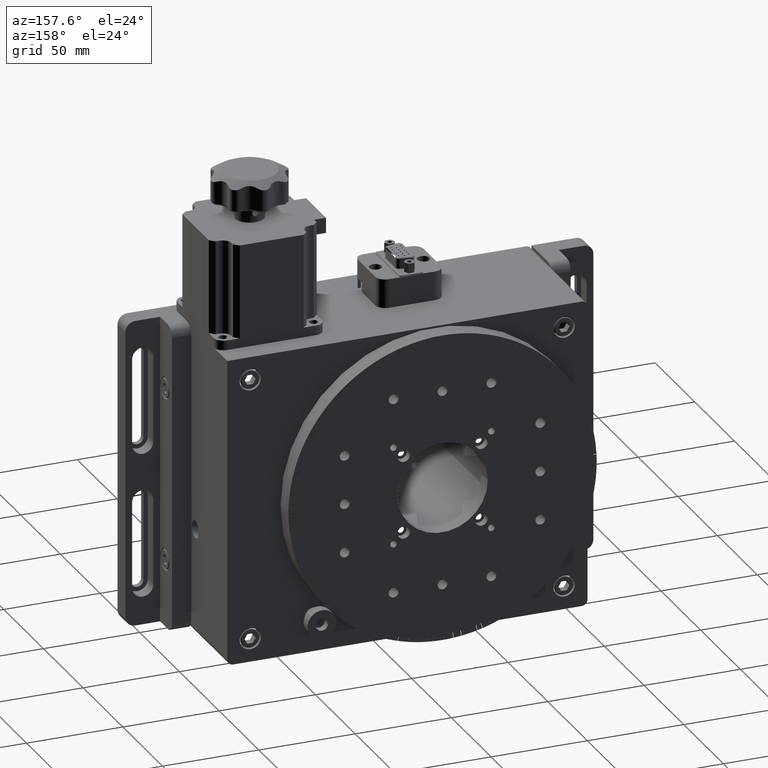
[diagram: clean part render]
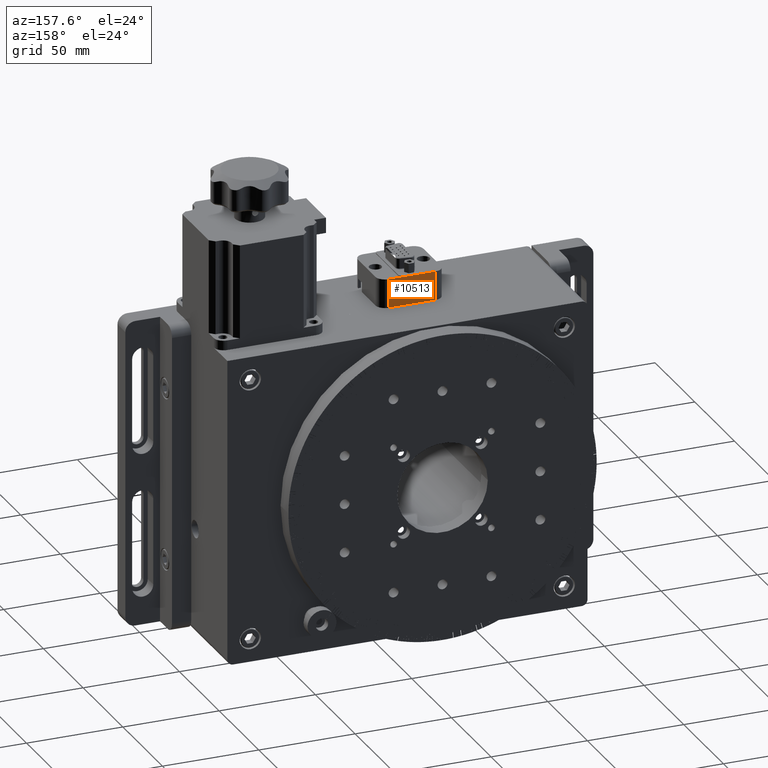
[diagram: same view with one face highlighted and labeled with its STEP entity id]
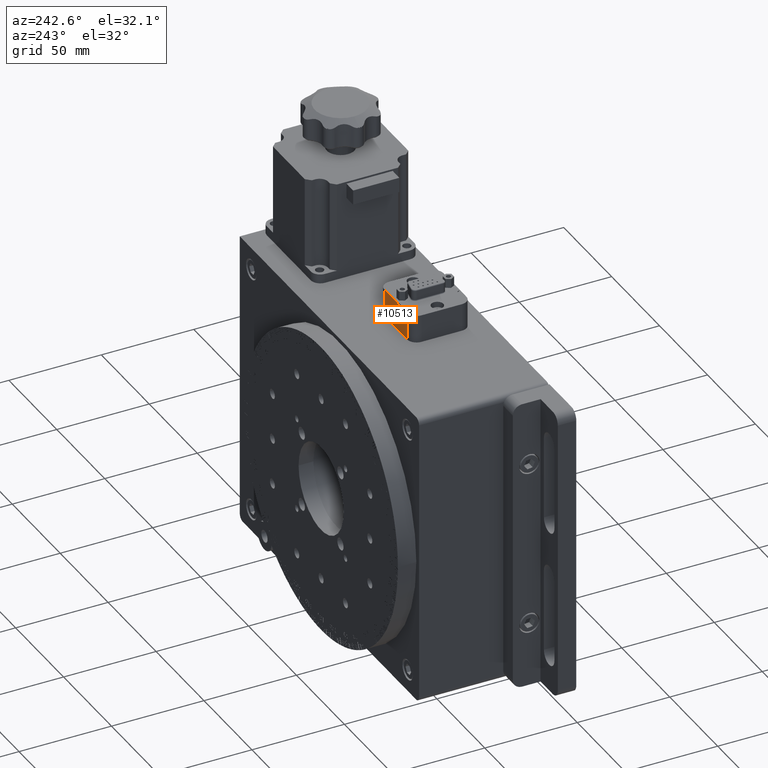
[diagram: same view with one face highlighted and labeled with its STEP entity id]
A machine part, auxiliary view. The second image highlights one B-rep face of the part: STEP entity #10513.
A second angle (auxiliary view) of the same face is appended — the face is thin or edge-on in the first view.
In plain terms, the highlighted planar face has unit normal (0, -1, 0).
Its self-contained STEP definition (entity closure, byte-faithful):
#1284 = LINE ( 'NONE', #101373, #86320 ) ;
#3206 = EDGE_CURVE ( 'NONE', #63572, #52190, #20990, .T. ) ;
#8374 = EDGE_LOOP ( 'NONE', ( #52083, #103395, #73476, #46723 ) ) ;
#10513 = ADVANCED_FACE ( 'NONE', ( #55059 ), #106426, .F. ) ;
#11810 = VECTOR ( 'NONE', #37366, 1000.000000000000000 ) ;
#12609 = VERTEX_POINT ( 'NONE', #53883 ) ;
#13069 = EDGE_CURVE ( 'NONE', #68420, #52190, #1284, .T. ) ;
#20990 = LINE ( 'NONE', #92543, #103523 ) ;
#24841 = CARTESIAN_POINT ( 'NONE',  ( 184.7999999999999500, 34.50000000000005700, 95.00000000000000000 ) ) ;
#25055 = EDGE_CURVE ( 'NONE', #12609, #68420, #80172, .T. ) ;
#33733 = VECTOR ( 'NONE', #78943, 1000.000000000000000 ) ;
#37366 = DIRECTION ( 'NONE',  ( 1.000000000000000000, -5.551115123125781700E-016, -1.163031447553721700E-017 ) ) ;
#40897 = DIRECTION ( 'NONE',  ( 6.661338147750937300E-016, -1.000000000000000000, 1.979074067922860000E-017 ) ) ;
#45773 = AXIS2_PLACEMENT_3D ( 'NONE', #90249, #40897, #98515 ) ;
#46723 = ORIENTED_EDGE ( 'NONE', *, *, #25055, .T. ) ;
#52083 = ORIENTED_EDGE ( 'NONE', *, *, #13069, .T. ) ;
#52190 = VERTEX_POINT ( 'NONE', #24841 ) ;
#53883 = CARTESIAN_POINT ( 'NONE',  ( 160.7999999999999500, 34.50000000000005700, 80.00000000000000000 ) ) ;
#55059 = FACE_OUTER_BOUND ( 'NONE', #8374, .T. ) ;
#55708 = LINE ( 'NONE', #77699, #11810 ) ;
#59623 = EDGE_CURVE ( 'NONE', #12609, #63572, #55708, .T. ) ;
#60680 = DIRECTION ( 'NONE',  ( 1.000000000000000000, -5.551115123125781700E-016, -1.163031447553721700E-017 ) ) ;
#63572 = VERTEX_POINT ( 'NONE', #64915 ) ;
#64915 = CARTESIAN_POINT ( 'NONE',  ( 184.7999999999999500, 34.50000000000005700, 80.00000000000000000 ) ) ;
#68420 = VERTEX_POINT ( 'NONE', #87173 ) ;
#70610 = CARTESIAN_POINT ( 'NONE',  ( 160.7999999999999500, 34.50000000000005700, 80.00000000000000000 ) ) ;
#73476 = ORIENTED_EDGE ( 'NONE', *, *, #59623, .F. ) ;
#77699 = CARTESIAN_POINT ( 'NONE',  ( 184.7999999999999500, 34.50000000000005700, 80.00000000000000000 ) ) ;
#78943 = DIRECTION ( 'NONE',  ( 1.163031447553720800E-017, 1.979074067922860900E-017, 1.000000000000000000 ) ) ;
#80172 = LINE ( 'NONE', #70610, #33733 ) ;
#86320 = VECTOR ( 'NONE', #60680, 1000.000000000000000 ) ;
#87173 = CARTESIAN_POINT ( 'NONE',  ( 160.7999999999999500, 34.50000000000005700, 95.00000000000000000 ) ) ;
#90249 = CARTESIAN_POINT ( 'NONE',  ( 184.7999999999999500, 34.50000000000005700, 80.00000000000000000 ) ) ;
#92543 = CARTESIAN_POINT ( 'NONE',  ( 184.7999999999999500, 34.50000000000005700, 80.00000000000000000 ) ) ;
#93600 = DIRECTION ( 'NONE',  ( 1.163031447553720800E-017, 1.979074067922860900E-017, 1.000000000000000000 ) ) ;
#98515 = DIRECTION ( 'NONE',  ( 1.163031447553720800E-017, 1.979074067922860900E-017, 1.000000000000000000 ) ) ;
#101373 = CARTESIAN_POINT ( 'NONE',  ( 184.7999999999999500, 34.50000000000005700, 95.00000000000000000 ) ) ;
#103395 = ORIENTED_EDGE ( 'NONE', *, *, #3206, .F. ) ;
#103523 = VECTOR ( 'NONE', #93600, 1000.000000000000000 ) ;
#106426 = PLANE ( 'NONE',  #45773 ) ;